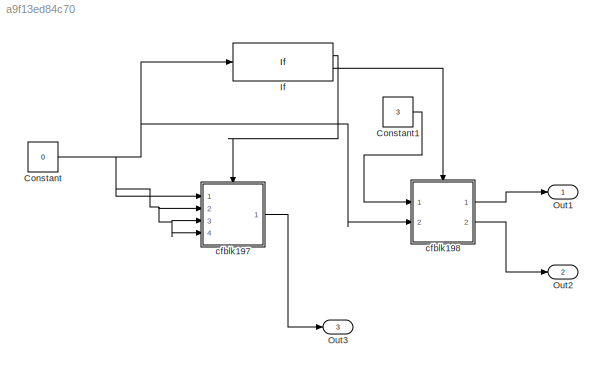
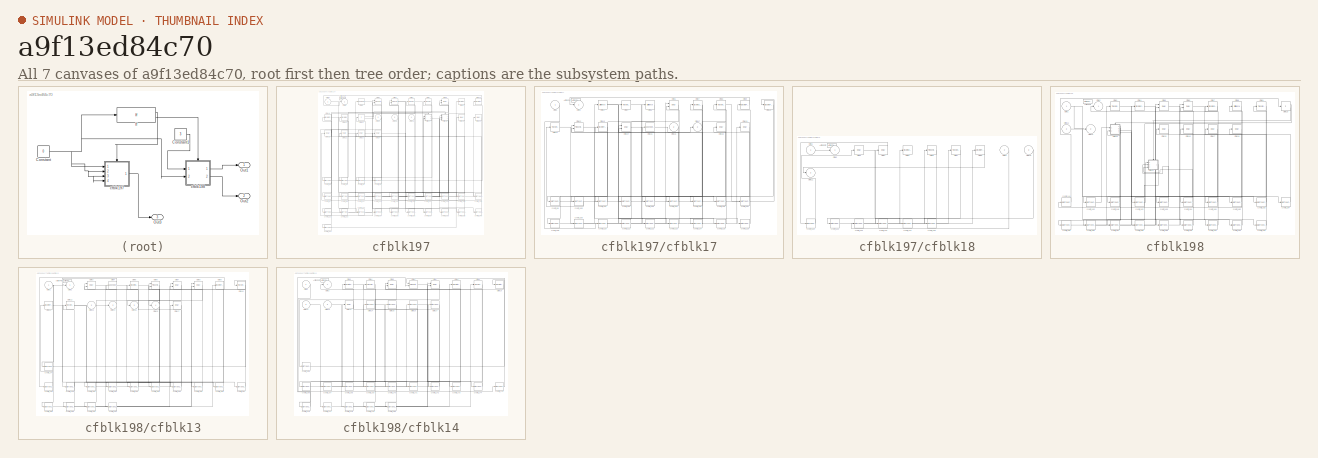
[diagram: thumbnail index - all 7 canvases of the model, root first then tree order]
MODEL slx_a9f13ed84c70
KIND model
CONFIG AbsTol = auto
CONFIG EnableMultiTasking = off
CONFIG FixedStep = auto
CONFIG MaxStep = auto
CONFIG MinStep = auto
CONFIG RelTol = 1e-3
CONFIG SampleTimeConstraint = Unconstrained
CONFIG Solver = VariableStepAuto
CONFIG SolverName = VariableStepAuto
CONFIG StartTime = 0.0
CONFIG StopTime = 10.0
BLOCK [Constant] Constant
  Value = 0
BLOCK [Constant] Constant1
  Value = 3
BLOCK [If] If
  Ports = [1, 2]
BLOCK [Outport] Out1
  IconDisplay = Port number
BLOCK [Outport] Out2
  IconDisplay = Port number
  Port = 2
BLOCK [Outport] Out3
  IconDisplay = Port number
  Port = 3
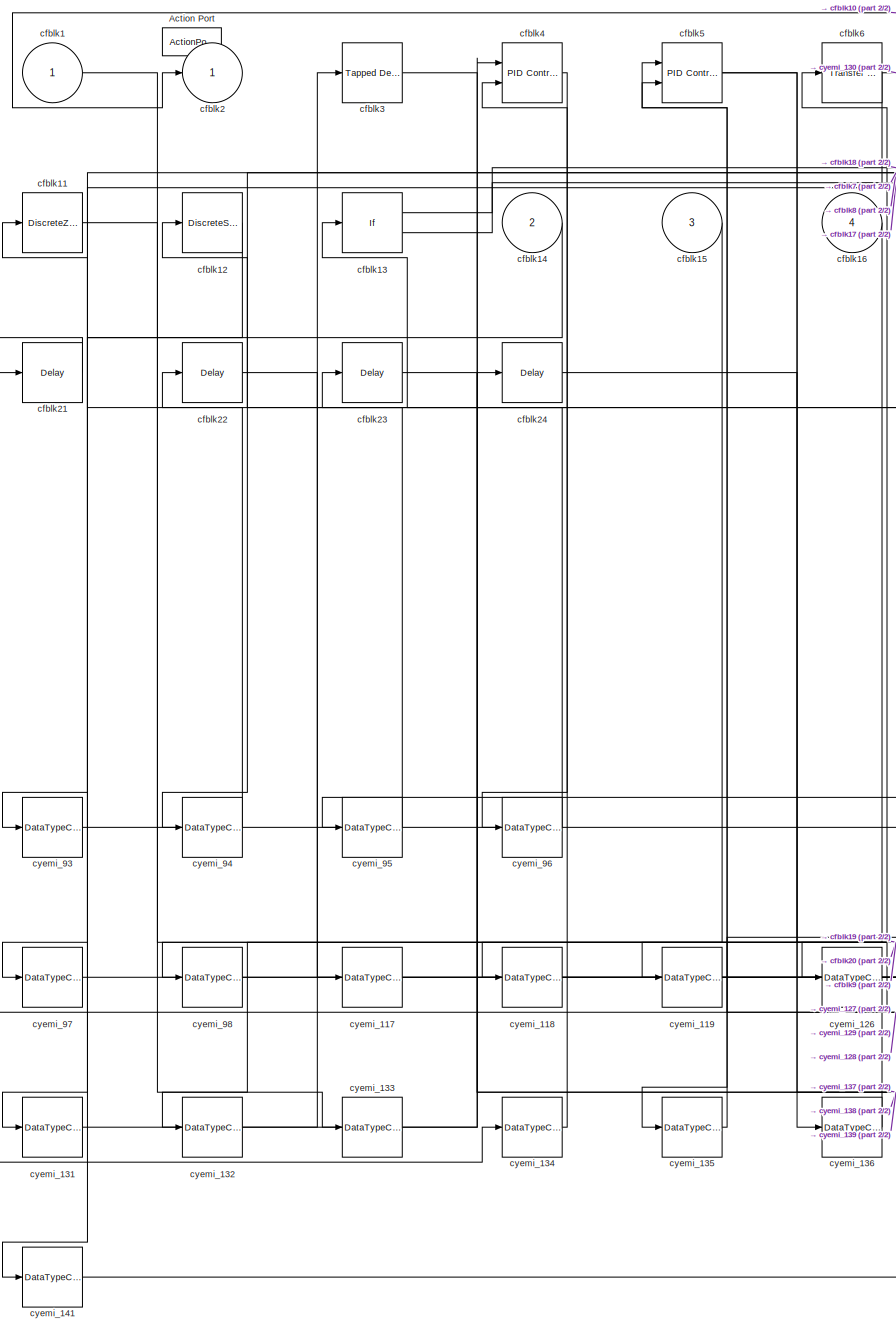
[diagram: cfblk197 - part 1/2, left side, full height]
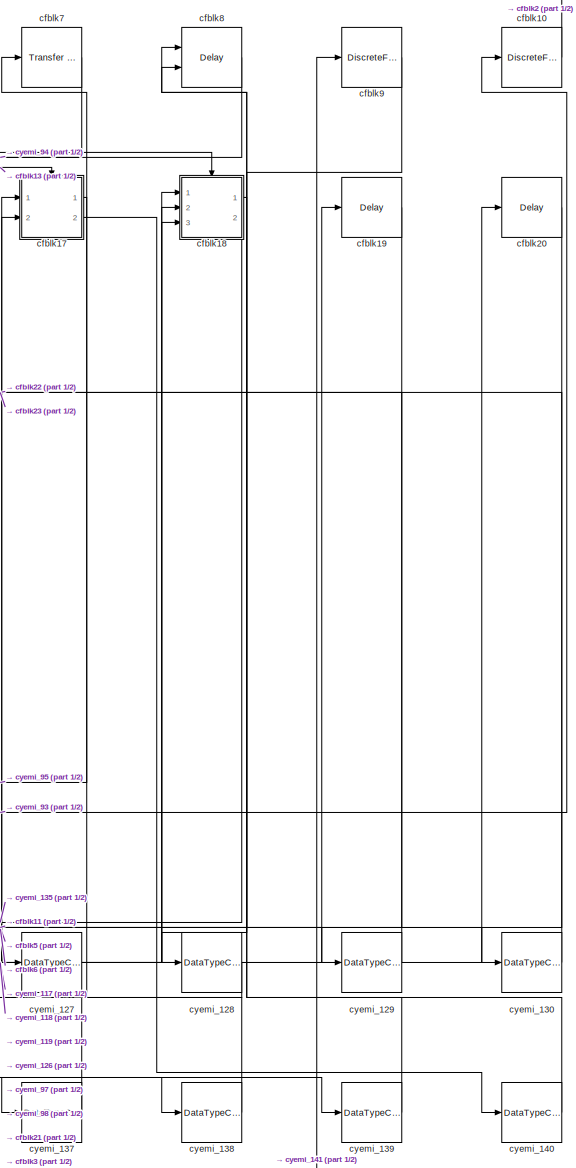
[diagram: cfblk197 - part 2/2, right side, full height]
BLOCK [SubSystem] cfblk197
  Ports = [4, 1, 0, 0, 0, 0, 0, 1]
  RequestExecContextInheritance = off
  TreatAsAtomicUnit = on
BLOCK [ActionPort] cfblk197/Action Port
  ActionType = then
BLOCK [Inport] cfblk197/cfblk1
  IconDisplay = Port number
BLOCK [DiscreteFilter] cfblk197/cfblk10
  InputPortMap = u0
  Ports = [1, 1]
BLOCK [DiscreteZeroPole] cfblk197/cfblk11
  Gain = 1
  Poles = [0 0.5]
  SampleTime = -1
BLOCK [DiscreteStateSpace] cfblk197/cfblk12
  SampleTime = -1
BLOCK [If] cfblk197/cfblk13
  Ports = [1, 2]
  SampleTime = 1
BLOCK [Inport] cfblk197/cfblk14
  IconDisplay = Port number
  Port = 2
BLOCK [Inport] cfblk197/cfblk15
  IconDisplay = Port number
  Port = 3
BLOCK [Inport] cfblk197/cfblk16
  IconDisplay = Port number
  Port = 4
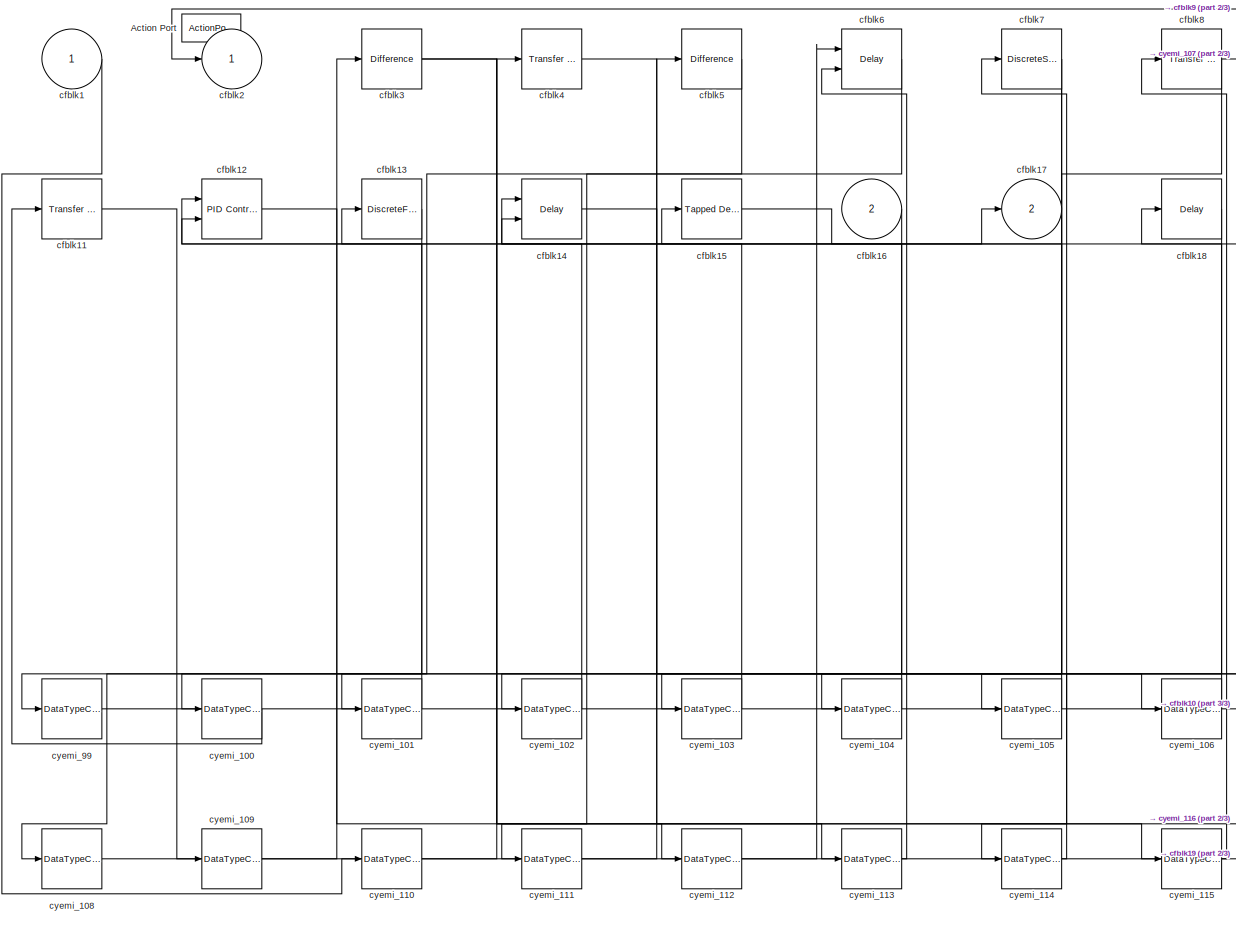
[diagram: cfblk197/cfblk17 - part 1/3, most of the canvas]
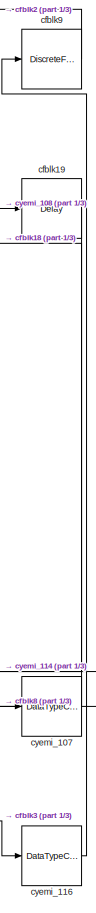
[diagram: cfblk197/cfblk17 - part 2/3, right side, full height]
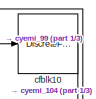
[diagram: cfblk197/cfblk17 - part 3/3, top right region]
BLOCK [SubSystem] cfblk197/cfblk17
  Ports = [2, 2, 0, 0, 0, 0, 0, 1]
  RequestExecContextInheritance = off
  TreatAsAtomicUnit = on
BLOCK [ActionPort] cfblk197/cfblk17/Action Port
  ActionType = then
BLOCK [Inport] cfblk197/cfblk17/cfblk1
  IconDisplay = Port number
BLOCK [DiscreteFir] cfblk197/cfblk17/cfblk10
  InputPortMap = u0
  OutputPortMap = o0
  Ports = [1, 1]
BLOCK [Reference] cfblk197/cfblk17/cfblk11  REF=simulink/Discrete/Transfer Fcn
Real Zero
  Ports = [1, 1]
  SourceBlock = simulink/Discrete/Transfer Fcn\nReal Zero
  SourceProductBaseCode = SL
  SourceProductName = Simulink
  SourceType = Transfer Fcn Real Zero
BLOCK [Reference] cfblk197/cfblk17/cfblk12  REF=simulink/Continuous/PID Controller (2DOF)
  Ports = [2, 1]
  SourceBlock = simulink/Continuous/PID Controller (2DOF)
  SourceProductBaseCode = SL
  SourceProductName = Simulink
  SourceType = PID 2dof
BLOCK [DiscreteFir] cfblk197/cfblk17/cfblk13
  InputPortMap = u0
  OutputPortMap = o0
  Ports = [1, 1]
BLOCK [Delay] cfblk197/cfblk17/cfblk14
  InputPortMap = u0,e6
  Ports = [2, 1]
  ShowEnablePort = on
BLOCK [Reference] cfblk197/cfblk17/cfblk15  REF=simulink/Discrete/Tapped Delay
  Ports = [1, 1]
  SourceBlock = simulink/Discrete/Tapped Delay
  SourceProductBaseCode = SL
  SourceProductName = Simulink
  SourceType = Tapped Delay Line
BLOCK [Inport] cfblk197/cfblk17/cfblk16
  IconDisplay = Port number
  Port = 2
BLOCK [Outport] cfblk197/cfblk17/cfblk17
  IconDisplay = Port number
  Port = 2
BLOCK [Delay] cfblk197/cfblk17/cfblk18
  InputPortMap = u0
  Ports = [1, 1]
BLOCK [Delay] cfblk197/cfblk17/cfblk19
  InputPortMap = u0
  Ports = [1, 1]
BLOCK [Outport] cfblk197/cfblk17/cfblk2
  IconDisplay = Port number
BLOCK [Reference] cfblk197/cfblk17/cfblk3  REF=simulink/Discrete/Difference
  Ports = [1, 1]
  SourceBlock = simulink/Discrete/Difference
  SourceProductBaseCode = SL
  SourceProductName = Simulink
  SourceType = Difference
BLOCK [Reference] cfblk197/cfblk17/cfblk4  REF=simulink/Discrete/Transfer Fcn
Real Zero
  Ports = [1, 1]
  SourceBlock = simulink/Discrete/Transfer Fcn\nReal Zero
  SourceProductBaseCode = SL
  SourceProductName = Simulink
  SourceType = Transfer Fcn Real Zero
BLOCK [Reference] cfblk197/cfblk17/cfblk5  REF=simulink/Discrete/Difference
  Ports = [1, 1]
  SourceBlock = simulink/Discrete/Difference
  SourceProductBaseCode = SL
  SourceProductName = Simulink
  SourceType = Difference
BLOCK [Delay] cfblk197/cfblk17/cfblk6
  DelayLengthSource = Input port
  InputPortMap = u0,p1
  Ports = [2, 1]
BLOCK [DiscreteStateSpace] cfblk197/cfblk17/cfblk7
  SampleTime = -1
BLOCK [Reference] cfblk197/cfblk17/cfblk8  REF=simulink/Discrete/Transfer Fcn
Lead or Lag
  Ports = [1, 1]
  SourceBlock = simulink/Discrete/Transfer Fcn\nLead or Lag
  SourceProductBaseCode = SL
  SourceProductName = Simulink
  SourceType = Lead or Lag Compensator
BLOCK [DiscreteFir] cfblk197/cfblk17/cfblk9
  InputPortMap = u0
  OutputPortMap = o0
  Ports = [1, 1]
BLOCK [DataTypeConversion] cfblk197/cfblk17/cyemi_100
  OutDataTypeStr = double
  RndMeth = Floor
  SaturateOnIntegerOverflow = off
BLOCK [DataTypeConversion] cfblk197/cfblk17/cyemi_101
  OutDataTypeStr = double
  RndMeth = Floor
  SaturateOnIntegerOverflow = off
BLOCK [DataTypeConversion] cfblk197/cfblk17/cyemi_102
  OutDataTypeStr = double
  RndMeth = Floor
  SaturateOnIntegerOverflow = off
BLOCK [DataTypeConversion] cfblk197/cfblk17/cyemi_103
  OutDataTypeStr = double
  RndMeth = Floor
  SaturateOnIntegerOverflow = off
BLOCK [DataTypeConversion] cfblk197/cfblk17/cyemi_104
  OutDataTypeStr = double
  RndMeth = Floor
  SaturateOnIntegerOverflow = off
BLOCK [DataTypeConversion] cfblk197/cfblk17/cyemi_105
  OutDataTypeStr = double
  RndMeth = Floor
  SaturateOnIntegerOverflow = off
BLOCK [DataTypeConversion] cfblk197/cfblk17/cyemi_106
  OutDataTypeStr = double
  RndMeth = Floor
  SaturateOnIntegerOverflow = off
BLOCK [DataTypeConversion] cfblk197/cfblk17/cyemi_107
  OutDataTypeStr = double
  RndMeth = Floor
  SaturateOnIntegerOverflow = off
BLOCK [DataTypeConversion] cfblk197/cfblk17/cyemi_108
  OutDataTypeStr = double
  RndMeth = Floor
  SaturateOnIntegerOverflow = off
BLOCK [DataTypeConversion] cfblk197/cfblk17/cyemi_109
  OutDataTypeStr = double
  RndMeth = Floor
  SaturateOnIntegerOverflow = off
BLOCK [DataTypeConversion] cfblk197/cfblk17/cyemi_110
  OutDataTypeStr = double
  RndMeth = Floor
  SaturateOnIntegerOverflow = off
BLOCK [DataTypeConversion] cfblk197/cfblk17/cyemi_111
  OutDataTypeStr = double
  RndMeth = Floor
  SaturateOnIntegerOverflow = off
BLOCK [DataTypeConversion] cfblk197/cfblk17/cyemi_112
  OutDataTypeStr = double
  RndMeth = Floor
  SaturateOnIntegerOverflow = off
BLOCK [DataTypeConversion] cfblk197/cfblk17/cyemi_113
  OutDataTypeStr = double
  RndMeth = Floor
  SaturateOnIntegerOverflow = off
BLOCK [DataTypeConversion] cfblk197/cfblk17/cyemi_114
  OutDataTypeStr = double
  RndMeth = Floor
  SaturateOnIntegerOverflow = off
BLOCK [DataTypeConversion] cfblk197/cfblk17/cyemi_115
  OutDataTypeStr = double
  RndMeth = Floor
  SaturateOnIntegerOverflow = off
BLOCK [DataTypeConversion] cfblk197/cfblk17/cyemi_116
  OutDataTypeStr = double
  RndMeth = Floor
  SaturateOnIntegerOverflow = off
BLOCK [DataTypeConversion] cfblk197/cfblk17/cyemi_99
  OutDataTypeStr = double
  RndMeth = Floor
  SaturateOnIntegerOverflow = off
BLOCK [SubSystem] cfblk197/cfblk18
  Ports = [3, 2, 0, 0, 0, 0, 0, 1]
  RequestExecContextInheritance = off
  TreatAsAtomicUnit = on
BLOCK [ActionPort] cfblk197/cfblk18/Action Port
  ActionType = else
BLOCK [Inport] cfblk197/cfblk18/cfblk1
  IconDisplay = Port number
BLOCK [Inport] cfblk197/cfblk18/cfblk10
  IconDisplay = Port number
  Port = 3
BLOCK [Outport] cfblk197/cfblk18/cfblk11
  IconDisplay = Port number
  Port = 2
BLOCK [Outport] cfblk197/cfblk18/cfblk2
  IconDisplay = Port number
BLOCK [Delay] cfblk197/cfblk18/cfblk3
  InputPortMap = u0
  Ports = [1, 1]
BLOCK [Delay] cfblk197/cfblk18/cfblk4
  InputPortMap = u0
  Ports = [1, 1]
BLOCK [DiscreteZeroPole] cfblk197/cfblk18/cfblk5
  Gain = 1
  Poles = [0 0.5]
  SampleTime = -1
BLOCK [Reference] cfblk197/cfblk18/cfblk6  REF=simulink/Continuous/PID Controller
  Ports = [1, 1]
  SourceBlock = simulink/Continuous/PID Controller
  SourceProductBaseCode = SL
  SourceProductName = Simulink
  SourceType = PID 1dof
BLOCK [Reference] cfblk197/cfblk18/cfblk7  REF=simulink/Discrete/Transfer Fcn
Real Zero
  Ports = [1, 1]
  SourceBlock = simulink/Discrete/Transfer Fcn\nReal Zero
  SourceProductBaseCode = SL
  SourceProductName = Simulink
  SourceType = Transfer Fcn Real Zero
BLOCK [DiscreteFilter] cfblk197/cfblk18/cfblk8
  InputPortMap = u0
  Ports = [1, 1]
BLOCK [Inport] cfblk197/cfblk18/cfblk9
  IconDisplay = Port number
  Port = 2
BLOCK [DataTypeConversion] cfblk197/cfblk18/cyemi_120
  OutDataTypeStr = double
  RndMeth = Floor
  SaturateOnIntegerOverflow = off
BLOCK [DataTypeConversion] cfblk197/cfblk18/cyemi_121
  OutDataTypeStr = double
  RndMeth = Floor
  SaturateOnIntegerOverflow = off
BLOCK [DataTypeConversion] cfblk197/cfblk18/cyemi_122
  OutDataTypeStr = double
  RndMeth = Floor
  SaturateOnIntegerOverflow = off
BLOCK [DataTypeConversion] cfblk197/cfblk18/cyemi_123
  OutDataTypeStr = double
  RndMeth = Floor
  SaturateOnIntegerOverflow = off
BLOCK [DataTypeConversion] cfblk197/cfblk18/cyemi_124
  OutDataTypeStr = double
  RndMeth = Floor
  SaturateOnIntegerOverflow = off
BLOCK [DataTypeConversion] cfblk197/cfblk18/cyemi_125
  OutDataTypeStr = double
  RndMeth = Floor
  SaturateOnIntegerOverflow = off
BLOCK [Delay] cfblk197/cfblk19
  InputPortMap = u0
  Ports = [1, 1]
BLOCK [Outport] cfblk197/cfblk2
  IconDisplay = Port number
BLOCK [Delay] cfblk197/cfblk20
  InputPortMap = u0
  Ports = [1, 1]
BLOCK [Delay] cfblk197/cfblk21
  InputPortMap = u0
  Ports = [1, 1]
BLOCK [Delay] cfblk197/cfblk22
  InputPortMap = u0
  Ports = [1, 1]
BLOCK [Delay] cfblk197/cfblk23
  InputPortMap = u0
  Ports = [1, 1]
BLOCK [Delay] cfblk197/cfblk24
  InputPortMap = u0
  Ports = [1, 1]
BLOCK [Reference] cfblk197/cfblk3  REF=simulink/Discrete/Tapped Delay
  Ports = [1, 1]
  SourceBlock = simulink/Discrete/Tapped Delay
  SourceProductBaseCode = SL
  SourceProductName = Simulink
  SourceType = Tapped Delay Line
BLOCK [Reference] cfblk197/cfblk4  REF=simulink/Continuous/PID Controller (2DOF)
  Ports = [2, 1]
  SourceBlock = simulink/Continuous/PID Controller (2DOF)
  SourceProductBaseCode = SL
  SourceProductName = Simulink
  SourceType = PID 2dof
BLOCK [Reference] cfblk197/cfblk5  REF=simulink/Continuous/PID Controller (2DOF)
  Ports = [2, 1]
  SourceBlock = simulink/Continuous/PID Controller (2DOF)
  SourceProductBaseCode = SL
  SourceProductName = Simulink
  SourceType = PID 2dof
BLOCK [Reference] cfblk197/cfblk6  REF=simulink/Discrete/Transfer Fcn
Real Zero
  Ports = [1, 1]
  SourceBlock = simulink/Discrete/Transfer Fcn\nReal Zero
  SourceProductBaseCode = SL
  SourceProductName = Simulink
  SourceType = Transfer Fcn Real Zero
BLOCK [Reference] cfblk197/cfblk7  REF=simulink/Discrete/Transfer Fcn
Lead or Lag
  Ports = [1, 1]
  SourceBlock = simulink/Discrete/Transfer Fcn\nLead or Lag
  SourceProductBaseCode = SL
  SourceProductName = Simulink
  SourceType = Lead or Lag Compensator
BLOCK [Delay] cfblk197/cfblk8
  DelayLengthSource = Input port
  InputPortMap = u0,p1
  Ports = [2, 1]
BLOCK [DiscreteFir] cfblk197/cfblk9
  InputPortMap = u0
  OutputPortMap = o0
  Ports = [1, 1]
BLOCK [DataTypeConversion] cfblk197/cyemi_117
  OutDataTypeStr = double
  RndMeth = Floor
  SaturateOnIntegerOverflow = off
BLOCK [DataTypeConversion] cfblk197/cyemi_118
  OutDataTypeStr = double
  RndMeth = Floor
  SaturateOnIntegerOverflow = off
BLOCK [DataTypeConversion] cfblk197/cyemi_119
  OutDataTypeStr = double
  RndMeth = Floor
  SaturateOnIntegerOverflow = off
BLOCK [DataTypeConversion] cfblk197/cyemi_126
  OutDataTypeStr = double
  RndMeth = Floor
  SaturateOnIntegerOverflow = off
BLOCK [DataTypeConversion] cfblk197/cyemi_127
  OutDataTypeStr = double
  RndMeth = Floor
  SaturateOnIntegerOverflow = off
BLOCK [DataTypeConversion] cfblk197/cyemi_128
  OutDataTypeStr = double
  RndMeth = Floor
  SaturateOnIntegerOverflow = off
BLOCK [DataTypeConversion] cfblk197/cyemi_129
  OutDataTypeStr = double
  RndMeth = Floor
  SaturateOnIntegerOverflow = off
BLOCK [DataTypeConversion] cfblk197/cyemi_130
  OutDataTypeStr = double
  RndMeth = Floor
  SaturateOnIntegerOverflow = off
BLOCK [DataTypeConversion] cfblk197/cyemi_131
  OutDataTypeStr = double
  RndMeth = Floor
  SaturateOnIntegerOverflow = off
BLOCK [DataTypeConversion] cfblk197/cyemi_132
  OutDataTypeStr = double
  RndMeth = Floor
  SaturateOnIntegerOverflow = off
BLOCK [DataTypeConversion] cfblk197/cyemi_133
  OutDataTypeStr = double
  RndMeth = Floor
  SaturateOnIntegerOverflow = off
BLOCK [DataTypeConversion] cfblk197/cyemi_134
  OutDataTypeStr = double
  RndMeth = Floor
  SaturateOnIntegerOverflow = off
BLOCK [DataTypeConversion] cfblk197/cyemi_135
  OutDataTypeStr = double
  RndMeth = Floor
  SaturateOnIntegerOverflow = off
BLOCK [DataTypeConversion] cfblk197/cyemi_136
  OutDataTypeStr = double
  RndMeth = Floor
  SaturateOnIntegerOverflow = off
BLOCK [DataTypeConversion] cfblk197/cyemi_137
  OutDataTypeStr = double
  RndMeth = Floor
  SaturateOnIntegerOverflow = off
BLOCK [DataTypeConversion] cfblk197/cyemi_138
  OutDataTypeStr = double
  RndMeth = Floor
  SaturateOnIntegerOverflow = off
BLOCK [DataTypeConversion] cfblk197/cyemi_139
  OutDataTypeStr = double
  RndMeth = Floor
  SaturateOnIntegerOverflow = off
BLOCK [DataTypeConversion] cfblk197/cyemi_140
  OutDataTypeStr = double
  RndMeth = Floor
  SaturateOnIntegerOverflow = off
BLOCK [DataTypeConversion] cfblk197/cyemi_141
  OutDataTypeStr = double
  RndMeth = Floor
  SaturateOnIntegerOverflow = off
BLOCK [DataTypeConversion] cfblk197/cyemi_93
  OutDataTypeStr = double
  RndMeth = Floor
  SaturateOnIntegerOverflow = off
BLOCK [DataTypeConversion] cfblk197/cyemi_94
  OutDataTypeStr = double
  RndMeth = Floor
  SaturateOnIntegerOverflow = off
BLOCK [DataTypeConversion] cfblk197/cyemi_95
  OutDataTypeStr = double
  RndMeth = Floor
  SaturateOnIntegerOverflow = off
BLOCK [DataTypeConversion] cfblk197/cyemi_96
  OutDataTypeStr = double
  RndMeth = Floor
  SaturateOnIntegerOverflow = off
BLOCK [DataTypeConversion] cfblk197/cyemi_97
  OutDataTypeStr = double
  RndMeth = Floor
  SaturateOnIntegerOverflow = off
BLOCK [DataTypeConversion] cfblk197/cyemi_98
  OutDataTypeStr = double
  RndMeth = Floor
  SaturateOnIntegerOverflow = off
BLOCK [SubSystem] cfblk198
  Ports = [2, 2, 0, 0, 0, 0, 0, 1]
  RequestExecContextInheritance = off
  TreatAsAtomicUnit = on
BLOCK [ActionPort] cfblk198/Action Port
  ActionType = else
BLOCK [Inport] cfblk198/cfblk1
  IconDisplay = Port number
BLOCK [If] cfblk198/cfblk10
  Ports = [1, 2]
  SampleTime = 1
BLOCK [Inport] cfblk198/cfblk11
  IconDisplay = Port number
  Port = 2
BLOCK [Outport] cfblk198/cfblk12
  IconDisplay = Port number
  Port = 2
BLOCK [SubSystem] cfblk198/cfblk13
  Ports = [2, 4, 0, 0, 0, 0, 0, 1]
  RequestExecContextInheritance = off
  TreatAsAtomicUnit = on
BLOCK [ActionPort] cfblk198/cfblk13/Action Port
  ActionType = then
BLOCK [Inport] cfblk198/cfblk13/cfblk1
  IconDisplay = Port number
BLOCK [Reference] cfblk198/cfblk13/cfblk10  REF=simulink/Discrete/Transfer Fcn
Real Zero
  Ports = [1, 1]
  SourceBlock = simulink/Discrete/Transfer Fcn\nReal Zero
  SourceProductBaseCode = SL
  SourceProductName = Simulink
  SourceType = Transfer Fcn Real Zero
BLOCK [DiscreteFilter] cfblk198/cfblk13/cfblk11
  InputPortMap = u0
  Ports = [1, 1]
BLOCK [Reference] cfblk198/cfblk13/cfblk12  REF=simulink/Discrete/Transfer Fcn
Lead or Lag
  Ports = [1, 1]
  SourceBlock = simulink/Discrete/Transfer Fcn\nLead or Lag
  SourceProductBaseCode = SL
  SourceProductName = Simulink
  SourceType = Lead or Lag Compensator
BLOCK [Inport] cfblk198/cfblk13/cfblk13
  IconDisplay = Port number
  Port = 2
BLOCK [Outport] cfblk198/cfblk13/cfblk14
  IconDisplay = Port number
  Port = 2
BLOCK [Outport] cfblk198/cfblk13/cfblk15
  IconDisplay = Port number
  Port = 3
BLOCK [Outport] cfblk198/cfblk13/cfblk16
  IconDisplay = Port number
  Port = 4
BLOCK [Delay] cfblk198/cfblk13/cfblk17
  InputPortMap = u0
  Ports = [1, 1]
BLOCK [Outport] cfblk198/cfblk13/cfblk2
  IconDisplay = Port number
BLOCK [Delay] cfblk198/cfblk13/cfblk3
  DelayLengthSource = Input port
  InputPortMap = u0,p1
  Ports = [2, 1]
BLOCK [Reference] cfblk198/cfblk13/cfblk4  REF=simulink/Discrete/Tapped Delay
  Ports = [1, 1]
  SourceBlock = simulink/Discrete/Tapped Delay
  SourceProductBaseCode = SL
  SourceProductName = Simulink
  SourceType = Tapped Delay Line
BLOCK [DiscreteIntegrator] cfblk198/cfblk13/cfblk5
  ICPrevOutput = DiscIntNeverNeededParam
  ICPrevScaledInput = DiscIntNeverNeededParam
  InitialConditionSetting = Auto
  Ports = [1, 1]
  SampleTime = -1
BLOCK [Reference] cfblk198/cfblk13/cfblk6  REF=simulink/Continuous/PID Controller (2DOF)
  Ports = [2, 1]
  SourceBlock = simulink/Continuous/PID Controller (2DOF)
  SourceProductBaseCode = SL
  SourceProductName = Simulink
  SourceType = PID 2dof
BLOCK [Delay] cfblk198/cfblk13/cfblk7
  DelayLengthSource = Input port
  InputPortMap = u0,p1
  Ports = [2, 1]
BLOCK [Delay] cfblk198/cfblk13/cfblk8
  DelayLengthSource = Input port
  InputPortMap = u0,p1
  Ports = [2, 1]
BLOCK [DiscreteFir] cfblk198/cfblk13/cfblk9
  InputPortMap = u0
  OutputPortMap = o0
  Ports = [1, 1]
BLOCK [DataTypeConversion] cfblk198/cfblk13/cyemi_147
  OutDataTypeStr = double
  RndMeth = Floor
  SaturateOnIntegerOverflow = off
BLOCK [DataTypeConversion] cfblk198/cfblk13/cyemi_148
  OutDataTypeStr = double
  RndMeth = Floor
  SaturateOnIntegerOverflow = off
BLOCK [DataTypeConversion] cfblk198/cfblk13/cyemi_149
  OutDataTypeStr = double
  RndMeth = Floor
  SaturateOnIntegerOverflow = off
BLOCK [DataTypeConversion] cfblk198/cfblk13/cyemi_150
  OutDataTypeStr = double
  RndMeth = Floor
  SaturateOnIntegerOverflow = off
BLOCK [DataTypeConversion] cfblk198/cfblk13/cyemi_151
  OutDataTypeStr = double
  RndMeth = Floor
  SaturateOnIntegerOverflow = off
BLOCK [DataTypeConversion] cfblk198/cfblk13/cyemi_152
  OutDataTypeStr = double
  RndMeth = Floor
  SaturateOnIntegerOverflow = off
BLOCK [DataTypeConversion] cfblk198/cfblk13/cyemi_153
  OutDataTypeStr = double
  RndMeth = Floor
  SaturateOnIntegerOverflow = off
BLOCK [DataTypeConversion] cfblk198/cfblk13/cyemi_154
  OutDataTypeStr = double
  RndMeth = Floor
  SaturateOnIntegerOverflow = off
BLOCK [DataTypeConversion] cfblk198/cfblk13/cyemi_155
  OutDataTypeStr = double
  RndMeth = Floor
  SaturateOnIntegerOverflow = off
BLOCK [DataTypeConversion] cfblk198/cfblk13/cyemi_156
  OutDataTypeStr = double
  RndMeth = Floor
  SaturateOnIntegerOverflow = off
BLOCK [DataTypeConversion] cfblk198/cfblk13/cyemi_157
  OutDataTypeStr = double
  RndMeth = Floor
  SaturateOnIntegerOverflow = off
BLOCK [DataTypeConversion] cfblk198/cfblk13/cyemi_158
  OutDataTypeStr = double
  RndMeth = Floor
  SaturateOnIntegerOverflow = off
BLOCK [DataTypeConversion] cfblk198/cfblk13/cyemi_159
  OutDataTypeStr = double
  RndMeth = Floor
  SaturateOnIntegerOverflow = off
BLOCK [DataTypeConversion] cfblk198/cfblk13/cyemi_160
  OutDataTypeStr = double
  RndMeth = Floor
  SaturateOnIntegerOverflow = off
BLOCK [DataTypeConversion] cfblk198/cfblk13/cyemi_161
  OutDataTypeStr = double
  RndMeth = Floor
  SaturateOnIntegerOverflow = off
BLOCK [SubSystem] cfblk198/cfblk14
  Ports = [3, 1, 0, 0, 0, 0, 0, 1]
  RequestExecContextInheritance = off
  TreatAsAtomicUnit = on
BLOCK [ActionPort] cfblk198/cfblk14/Action Port
  ActionType = else
BLOCK [Inport] cfblk198/cfblk14/cfblk1
  IconDisplay = Port number
BLOCK [DiscreteIntegrator] cfblk198/cfblk14/cfblk10
  ICPrevOutput = DiscIntNeverNeededParam
  ICPrevScaledInput = DiscIntNeverNeededParam
  InitialConditionSetting = Auto
  Ports = [1, 1]
  SampleTime = -1
BLOCK [Inport] cfblk198/cfblk14/cfblk11
  IconDisplay = Port number
  Port = 2
BLOCK [Inport] cfblk198/cfblk14/cfblk12
  IconDisplay = Port number
  Port = 3
BLOCK [Delay] cfblk198/cfblk14/cfblk13
  InputPortMap = u0
  Ports = [1, 1]
BLOCK [DataTypeConversion] cfblk198/cfblk14/cfblk14
  RndMeth = Floor
  SaturateOnIntegerOverflow = off
BLOCK [DataTypeConversion] cfblk198/cfblk14/cfblk15
  RndMeth = Floor
  SaturateOnIntegerOverflow = off
BLOCK [DataTypeConversion] cfblk198/cfblk14/cfblk16
  RndMeth = Floor
  SaturateOnIntegerOverflow = off
BLOCK [DataTypeConversion] cfblk198/cfblk14/cfblk17
  RndMeth = Floor
  SaturateOnIntegerOverflow = off
BLOCK [Outport] cfblk198/cfblk14/cfblk2
  IconDisplay = Port number
BLOCK [DiscreteStateSpace] cfblk198/cfblk14/cfblk3
  SampleTime = -1
BLOCK [Reference] cfblk198/cfblk14/cfblk4  REF=simulink/Discrete/Transfer Fcn
Real Zero
  Ports = [1, 1]
  SourceBlock = simulink/Discrete/Transfer Fcn\nReal Zero
  SourceProductBaseCode = SL
  SourceProductName = Simulink
  SourceType = Transfer Fcn Real Zero
BLOCK [Delay] cfblk198/cfblk14/cfblk5
  DelayLengthSource = Input port
  InputPortMap = u0,p1
  Ports = [2, 1]
BLOCK [Reference] cfblk198/cfblk14/cfblk6  REF=simulink/Continuous/PID Controller (2DOF)
  Ports = [2, 1]
  SourceBlock = simulink/Continuous/PID Controller (2DOF)
  SourceProductBaseCode = SL
  SourceProductName = Simulink
  SourceType = PID 2dof
BLOCK [Delay] cfblk198/cfblk14/cfblk7
  DelayLengthSource = Input port
  InputPortMap = u0,p1
  Ports = [2, 1]
BLOCK [DiscreteIntegrator] cfblk198/cfblk14/cfblk8
  ICPrevOutput = DiscIntNeverNeededParam
  ICPrevScaledInput = DiscIntNeverNeededParam
  InitialConditionSetting = Auto
  Ports = [1, 1]
  SampleTime = -1
BLOCK [Reference] cfblk198/cfblk14/cfblk9  REF=simulink/Discrete/Transfer Fcn
Lead or Lag
  Ports = [1, 1]
  SourceBlock = simulink/Discrete/Transfer Fcn\nLead or Lag
  SourceProductBaseCode = SL
  SourceProductName = Simulink
  SourceType = Lead or Lag Compensator
BLOCK [DataTypeConversion] cfblk198/cfblk14/cyemi_165
  OutDataTypeStr = double
  RndMeth = Floor
  SaturateOnIntegerOverflow = off
BLOCK [DataTypeConversion] cfblk198/cfblk14/cyemi_166
  OutDataTypeStr = double
  RndMeth = Floor
  SaturateOnIntegerOverflow = off
BLOCK [DataTypeConversion] cfblk198/cfblk14/cyemi_167
  OutDataTypeStr = double
  RndMeth = Floor
  SaturateOnIntegerOverflow = off
BLOCK [DataTypeConversion] cfblk198/cfblk14/cyemi_168
  OutDataTypeStr = fixdt('ufix32_E3')
  RndMeth = Floor
  SaturateOnIntegerOverflow = off
BLOCK [DataTypeConversion] cfblk198/cfblk14/cyemi_169
  OutDataTypeStr = double
  RndMeth = Floor
  SaturateOnIntegerOverflow = off
BLOCK [DataTypeConversion] cfblk198/cfblk14/cyemi_170
  OutDataTypeStr = double
  RndMeth = Floor
  SaturateOnIntegerOverflow = off
BLOCK [DataTypeConversion] cfblk198/cfblk14/cyemi_171
  OutDataTypeStr = double
  RndMeth = Floor
  SaturateOnIntegerOverflow = off
BLOCK [DataTypeConversion] cfblk198/cfblk14/cyemi_172
  OutDataTypeStr = double
  RndMeth = Floor
  SaturateOnIntegerOverflow = off
BLOCK [DataTypeConversion] cfblk198/cfblk14/cyemi_173
  OutDataTypeStr = double
  RndMeth = Floor
  SaturateOnIntegerOverflow = off
BLOCK [DataTypeConversion] cfblk198/cfblk14/cyemi_174
  OutDataTypeStr = uint32
  RndMeth = Floor
  SaturateOnIntegerOverflow = off
BLOCK [DataTypeConversion] cfblk198/cfblk14/cyemi_175
  OutDataTypeStr = double
  RndMeth = Floor
  SaturateOnIntegerOverflow = off
BLOCK [DataTypeConversion] cfblk198/cfblk14/cyemi_176
  OutDataTypeStr = double
  RndMeth = Floor
  SaturateOnIntegerOverflow = off
BLOCK [DataTypeConversion] cfblk198/cfblk14/cyemi_177
  OutDataTypeStr = double
  RndMeth = Floor
  SaturateOnIntegerOverflow = off
BLOCK [DataTypeConversion] cfblk198/cfblk14/cyemi_178
  OutDataTypeStr = double
  RndMeth = Floor
  SaturateOnIntegerOverflow = off
BLOCK [DataTypeConversion] cfblk198/cfblk14/cyemi_179
  OutDataTypeStr = double
  RndMeth = Floor
  SaturateOnIntegerOverflow = off
BLOCK [DataTypeConversion] cfblk198/cfblk14/cyemi_180
  OutDataTypeStr = uint32
  RndMeth = Floor
  SaturateOnIntegerOverflow = off
BLOCK [Delay] cfblk198/cfblk15
  InputPortMap = u0
  Ports = [1, 1]
BLOCK [Delay] cfblk198/cfblk16
  InputPortMap = u0
  Ports = [1, 1]
BLOCK [Delay] cfblk198/cfblk17
  InputPortMap = u0
  Ports = [1, 1]
BLOCK [Delay] cfblk198/cfblk18
  InputPortMap = u0
  Ports = [1, 1]
BLOCK [Outport] cfblk198/cfblk2
  IconDisplay = Port number
BLOCK [Reference] cfblk198/cfblk3  REF=simulink/Discrete/Transfer Fcn
Real Zero
  Ports = [1, 1]
  SourceBlock = simulink/Discrete/Transfer Fcn\nReal Zero
  SourceProductBaseCode = SL
  SourceProductName = Simulink
  SourceType = Transfer Fcn Real Zero
BLOCK [DiscreteZeroPole] cfblk198/cfblk4
  Gain = 1
  Poles = [0 0.5]
  SampleTime = -1
BLOCK [Delay] cfblk198/cfblk5
  DelayLengthSource = Input port
  InputPortMap = u0,p1
  Ports = [2, 1]
BLOCK [Delay] cfblk198/cfblk6
  DelayLengthSource = Input port
  InputPortMap = u0,p1
  Ports = [2, 1]
BLOCK [DiscreteStateSpace] cfblk198/cfblk7
  SampleTime = -1
BLOCK [Reference] cfblk198/cfblk8  REF=simulink/Discrete/Difference
  Ports = [1, 1]
  SourceBlock = simulink/Discrete/Difference
  SourceProductBaseCode = SL
  SourceProductName = Simulink
  SourceType = Difference
BLOCK [Reference] cfblk198/cfblk9  REF=simulink/Discrete/Transfer Fcn
Lead or Lag
  Ports = [1, 1]
  SourceBlock = simulink/Discrete/Transfer Fcn\nLead or Lag
  SourceProductBaseCode = SL
  SourceProductName = Simulink
  SourceType = Lead or Lag Compensator
BLOCK [DataTypeConversion] cfblk198/cyemi_144
  OutDataTypeStr = double
  RndMeth = Floor
  SaturateOnIntegerOverflow = off
BLOCK [DataTypeConversion] cfblk198/cyemi_145
  OutDataTypeStr = double
  RndMeth = Floor
  SaturateOnIntegerOverflow = off
BLOCK [DataTypeConversion] cfblk198/cyemi_146
  OutDataTypeStr = double
  RndMeth = Floor
  SaturateOnIntegerOverflow = off
BLOCK [DataTypeConversion] cfblk198/cyemi_162
  OutDataTypeStr = double
  RndMeth = Floor
  SaturateOnIntegerOverflow = off
BLOCK [DataTypeConversion] cfblk198/cyemi_163
  OutDataTypeStr = double
  RndMeth = Floor
  SaturateOnIntegerOverflow = off
BLOCK [DataTypeConversion] cfblk198/cyemi_164
  OutDataTypeStr = double
  RndMeth = Floor
  SaturateOnIntegerOverflow = off
BLOCK [DataTypeConversion] cfblk198/cyemi_181
  OutDataTypeStr = double
  RndMeth = Floor
  SaturateOnIntegerOverflow = off
BLOCK [DataTypeConversion] cfblk198/cyemi_182
  OutDataTypeStr = double
  RndMeth = Floor
  SaturateOnIntegerOverflow = off
BLOCK [DataTypeConversion] cfblk198/cyemi_183
  OutDataTypeStr = double
  RndMeth = Floor
  SaturateOnIntegerOverflow = off
BLOCK [DataTypeConversion] cfblk198/cyemi_184
  OutDataTypeStr = double
  RndMeth = Floor
  SaturateOnIntegerOverflow = off
BLOCK [DataTypeConversion] cfblk198/cyemi_185
  OutDataTypeStr = double
  RndMeth = Floor
  SaturateOnIntegerOverflow = off
BLOCK [DataTypeConversion] cfblk198/cyemi_186
  OutDataTypeStr = double
  RndMeth = Floor
  SaturateOnIntegerOverflow = off
BLOCK [DataTypeConversion] cfblk198/cyemi_187
  OutDataTypeStr = double
  RndMeth = Floor
  SaturateOnIntegerOverflow = off
BLOCK [DataTypeConversion] cfblk198/cyemi_188
  OutDataTypeStr = double
  RndMeth = Floor
  SaturateOnIntegerOverflow = off
BLOCK [DataTypeConversion] cfblk198/cyemi_189
  OutDataTypeStr = double
  RndMeth = Floor
  SaturateOnIntegerOverflow = off
BLOCK [DataTypeConversion] cfblk198/cyemi_190
  OutDataTypeStr = double
  RndMeth = Floor
  SaturateOnIntegerOverflow = off
BLOCK [DataTypeConversion] cfblk198/cyemi_191
  OutDataTypeStr = double
  RndMeth = Floor
  SaturateOnIntegerOverflow = off
BLOCK [DataTypeConversion] cfblk198/cyemi_192
  OutDataTypeStr = double
  RndMeth = Floor
  SaturateOnIntegerOverflow = off
BLOCK [DataTypeConversion] cfblk198/cyemi_193
  OutDataTypeStr = double
  RndMeth = Floor
  SaturateOnIntegerOverflow = off
LINE Constant1:1 -> cfblk198:1
NET Constant:1 -> If:1, cfblk197:1, cfblk197:2, cfblk197:3, cfblk197:4, cfblk198:2
LINE If:1 -> cfblk197:ifaction
LINE If:2 -> cfblk198:ifaction
LINE cfblk197/cfblk10:1 -> cfblk197/cfblk2:1
LINE cfblk197/cfblk11:1 -> cfblk197/cyemi_127:1
LINE cfblk197/cfblk12:1 -> cfblk197/cyemi_141:1
LINE cfblk197/cfblk13:1 -> cfblk197/cfblk17:ifaction
LINE cfblk197/cfblk13:2 -> cfblk197/cfblk18:ifaction
LINE cfblk197/cfblk14:1 -> cfblk197/cyemi_93:1
LINE cfblk197/cfblk15:1 -> cfblk197/cyemi_119:1
LINE cfblk197/cfblk16:1 -> cfblk197/cyemi_132:1
LINE cfblk197/cfblk17/cfblk10:1 -> cfblk197/cfblk17/cyemi_104:1
LINE cfblk197/cfblk17/cfblk11:1 -> cfblk197/cfblk17/cyemi_109:1
LINE cfblk197/cfblk17/cfblk12:1 -> cfblk197/cfblk17/cyemi_115:1
LINE cfblk197/cfblk17/cfblk13:1 -> cfblk197/cfblk17/cyemi_108:1
LINE cfblk197/cfblk17/cfblk14:1 -> cfblk197/cfblk17/cyemi_106:1
LINE cfblk197/cfblk17/cfblk15:1 -> cfblk197/cfblk17/cfblk17:1
LINE cfblk197/cfblk17/cfblk16:1 -> cfblk197/cfblk17/cyemi_99:1
LINE cfblk197/cfblk17/cfblk18:1 -> cfblk197/cfblk17/cyemi_102:1
LINE cfblk197/cfblk17/cfblk19:1 -> cfblk197/cfblk17/cyemi_114:1
LINE cfblk197/cfblk17/cfblk1:1 -> cfblk197/cfblk17/cyemi_110:1
NET cfblk197/cfblk17/cfblk3:1 -> cfblk197/cfblk17/cyemi_112:1, cfblk197/cfblk17/cyemi_116:1
LINE cfblk197/cfblk17/cfblk4:1 -> cfblk197/cfblk17/cyemi_113:1
LINE cfblk197/cfblk17/cfblk5:1 -> cfblk197/cfblk17/cyemi_101:1
LINE cfblk197/cfblk17/cfblk6:1 -> cfblk197/cfblk17/cyemi_111:1
NET cfblk197/cfblk17/cfblk7:1 -> cfblk197/cfblk17/cyemi_100:1, cfblk197/cfblk17/cyemi_103:1
NET cfblk197/cfblk17/cfblk8:1 -> cfblk197/cfblk17/cyemi_105:1, cfblk197/cfblk17/cyemi_107:1
LINE cfblk197/cfblk17/cfblk9:1 -> cfblk197/cfblk17/cfblk2:1
LINE cfblk197/cfblk17/cyemi_100:1 -> cfblk197/cfblk17/cfblk11:1
LINE cfblk197/cfblk17/cyemi_101:1 -> cfblk197/cfblk17/cfblk12:1
LINE cfblk197/cfblk17/cyemi_102:1 -> cfblk197/cfblk17/cfblk12:2
LINE cfblk197/cfblk17/cyemi_103:1 -> cfblk197/cfblk17/cfblk13:1
LINE cfblk197/cfblk17/cyemi_104:1 -> cfblk197/cfblk17/cfblk14:1
LINE cfblk197/cfblk17/cyemi_105:1 -> cfblk197/cfblk17/cfblk14:2
LINE cfblk197/cfblk17/cyemi_106:1 -> cfblk197/cfblk17/cfblk15:1
LINE cfblk197/cfblk17/cyemi_107:1 -> cfblk197/cfblk17/cfblk18:1
LINE cfblk197/cfblk17/cyemi_108:1 -> cfblk197/cfblk17/cfblk19:1
LINE cfblk197/cfblk17/cyemi_109:1 -> cfblk197/cfblk17/cfblk3:1
LINE cfblk197/cfblk17/cyemi_110:1 -> cfblk197/cfblk17/cfblk4:1
LINE cfblk197/cfblk17/cyemi_111:1 -> cfblk197/cfblk17/cfblk5:1
LINE cfblk197/cfblk17/cyemi_112:1 -> cfblk197/cfblk17/cfblk6:1
LINE cfblk197/cfblk17/cyemi_113:1 -> cfblk197/cfblk17/cfblk6:2
LINE cfblk197/cfblk17/cyemi_114:1 -> cfblk197/cfblk17/cfblk7:1
LINE cfblk197/cfblk17/cyemi_115:1 -> cfblk197/cfblk17/cfblk8:1
LINE cfblk197/cfblk17/cyemi_116:1 -> cfblk197/cfblk17/cfblk9:1
LINE cfblk197/cfblk17/cyemi_99:1 -> cfblk197/cfblk17/cfblk10:1
LINE cfblk197/cfblk17:1 -> cfblk197/cyemi_95:1
LINE cfblk197/cfblk17:2 -> cfblk197/cyemi_140:1
LINE cfblk197/cfblk18/cfblk10:1 -> cfblk197/cfblk18/cyemi_123:1
LINE cfblk197/cfblk18/cfblk1:1 -> cfblk197/cfblk18/cfblk2:1
LINE cfblk197/cfblk18/cfblk3:1 -> cfblk197/cfblk18/cyemi_124:1
LINE cfblk197/cfblk18/cfblk4:1 -> cfblk197/cfblk18/cyemi_120:1
LINE cfblk197/cfblk18/cfblk6:1 -> cfblk197/cfblk18/cyemi_121:1
LINE cfblk197/cfblk18/cfblk7:1 -> cfblk197/cfblk18/cyemi_125:1
LINE cfblk197/cfblk18/cfblk8:1 -> cfblk197/cfblk18/cfblk11:1
LINE cfblk197/cfblk18/cfblk9:1 -> cfblk197/cfblk18/cyemi_122:1
LINE cfblk197/cfblk18/cyemi_120:1 -> cfblk197/cfblk18/cfblk3:1
LINE cfblk197/cfblk18/cyemi_121:1 -> cfblk197/cfblk18/cfblk4:1
LINE cfblk197/cfblk18/cyemi_122:1 -> cfblk197/cfblk18/cfblk5:1
LINE cfblk197/cfblk18/cyemi_123:1 -> cfblk197/cfblk18/cfblk6:1
LINE cfblk197/cfblk18/cyemi_124:1 -> cfblk197/cfblk18/cfblk7:1
LINE cfblk197/cfblk18/cyemi_125:1 -> cfblk197/cfblk18/cfblk8:1
LINE cfblk197/cfblk18:1 -> cfblk197/cyemi_128:1
LINE cfblk197/cfblk18:2 -> cfblk197/cyemi_135:1
LINE cfblk197/cfblk19:1 -> cfblk197/cyemi_98:1
LINE cfblk197/cfblk1:1 -> cfblk197/cyemi_133:1
LINE cfblk197/cfblk20:1 -> cfblk197/cyemi_118:1
LINE cfblk197/cfblk21:1 -> cfblk197/cyemi_134:1
LINE cfblk197/cfblk22:1 -> cfblk197/cyemi_117:1
LINE cfblk197/cfblk23:1 -> cfblk197/cyemi_139:1
LINE cfblk197/cfblk24:1 -> cfblk197/cyemi_136:1
LINE cfblk197/cfblk3:1 -> cfblk197/cyemi_138:1
LINE cfblk197/cfblk4:1 -> cfblk197/cyemi_96:1
NET cfblk197/cfblk5:1 -> cfblk197/cyemi_129:1, cfblk197/cyemi_137:1
NET cfblk197/cfblk6:1 -> cfblk197/cyemi_130:1, cfblk197/cyemi_131:1
LINE cfblk197/cfblk7:1 -> cfblk197/cyemi_97:1
LINE cfblk197/cfblk8:1 -> cfblk197/cyemi_94:1
LINE cfblk197/cfblk9:1 -> cfblk197/cyemi_126:1
LINE cfblk197/cyemi_117:1 -> cfblk197/cfblk18:1
LINE cfblk197/cyemi_118:1 -> cfblk197/cfblk18:2
LINE cfblk197/cyemi_119:1 -> cfblk197/cfblk18:3
LINE cfblk197/cyemi_126:1 -> cfblk197/cfblk19:1
LINE cfblk197/cyemi_127:1 -> cfblk197/cfblk20:1
LINE cfblk197/cyemi_128:1 -> cfblk197/cfblk21:1
LINE cfblk197/cyemi_129:1 -> cfblk197/cfblk22:1
LINE cfblk197/cyemi_130:1 -> cfblk197/cfblk23:1
LINE cfblk197/cyemi_131:1 -> cfblk197/cfblk24:1
LINE cfblk197/cyemi_132:1 -> cfblk197/cfblk3:1
LINE cfblk197/cyemi_133:1 -> cfblk197/cfblk4:1
LINE cfblk197/cyemi_134:1 -> cfblk197/cfblk4:2
LINE cfblk197/cyemi_135:1 -> cfblk197/cfblk5:1
LINE cfblk197/cyemi_136:1 -> cfblk197/cfblk5:2
LINE cfblk197/cyemi_137:1 -> cfblk197/cfblk6:1
LINE cfblk197/cyemi_138:1 -> cfblk197/cfblk7:1
LINE cfblk197/cyemi_139:1 -> cfblk197/cfblk8:1
LINE cfblk197/cyemi_140:1 -> cfblk197/cfblk8:2
LINE cfblk197/cyemi_141:1 -> cfblk197/cfblk9:1
LINE cfblk197/cyemi_93:1 -> cfblk197/cfblk10:1
LINE cfblk197/cyemi_94:1 -> cfblk197/cfblk11:1
LINE cfblk197/cyemi_95:1 -> cfblk197/cfblk12:1
LINE cfblk197/cyemi_96:1 -> cfblk197/cfblk13:1
LINE cfblk197/cyemi_97:1 -> cfblk197/cfblk17:1
LINE cfblk197/cyemi_98:1 -> cfblk197/cfblk17:2
LINE cfblk197:1 -> Out3:1
LINE cfblk198/cfblk10:1 -> cfblk198/cfblk13:ifaction
LINE cfblk198/cfblk10:2 -> cfblk198/cfblk14:ifaction
LINE cfblk198/cfblk11:1 -> cfblk198/cyemi_188:1
LINE cfblk198/cfblk13/cfblk10:1 -> cfblk198/cfblk13/cyemi_148:1
LINE cfblk198/cfblk13/cfblk11:1 -> cfblk198/cfblk13/cyemi_149:1
NET cfblk198/cfblk13/cfblk12:1 -> cfblk198/cfblk13/cyemi_154:1, cfblk198/cfblk13/cyemi_161:1
LINE cfblk198/cfblk13/cfblk13:1 -> cfblk198/cfblk13/cfblk14:1
LINE cfblk198/cfblk13/cfblk17:1 -> cfblk198/cfblk13/cyemi_152:1
NET cfblk198/cfblk13/cfblk1:1 -> cfblk198/cfblk13/cyemi_147:1, cfblk198/cfblk13/cyemi_155:1, cfblk198/cfblk13/cyemi_158:1
LINE cfblk198/cfblk13/cfblk3:1 -> cfblk198/cfblk13/cyemi_153:1
NET cfblk198/cfblk13/cfblk4:1 -> cfblk198/cfblk13/cfblk2:1, cfblk198/cfblk13/cyemi_156:1
LINE cfblk198/cfblk13/cfblk5:1 -> cfblk198/cfblk13/cyemi_157:1
NET cfblk198/cfblk13/cfblk6:1 -> cfblk198/cfblk13/cfblk15:1, cfblk198/cfblk13/cyemi_150:1, cfblk198/cfblk13/cyemi_159:1
LINE cfblk198/cfblk13/cfblk7:1 -> cfblk198/cfblk13/cyemi_160:1
LINE cfblk198/cfblk13/cfblk8:1 -> cfblk198/cfblk13/cfblk16:1
LINE cfblk198/cfblk13/cfblk9:1 -> cfblk198/cfblk13/cyemi_151:1
LINE cfblk198/cfblk13/cyemi_147:1 -> cfblk198/cfblk13/cfblk10:1
LINE cfblk198/cfblk13/cyemi_148:1 -> cfblk198/cfblk13/cfblk11:1
LINE cfblk198/cfblk13/cyemi_149:1 -> cfblk198/cfblk13/cfblk12:1
LINE cfblk198/cfblk13/cyemi_150:1 -> cfblk198/cfblk13/cfblk17:1
LINE cfblk198/cfblk13/cyemi_151:1 -> cfblk198/cfblk13/cfblk3:1
LINE cfblk198/cfblk13/cyemi_152:1 -> cfblk198/cfblk13/cfblk3:2
LINE cfblk198/cfblk13/cyemi_153:1 -> cfblk198/cfblk13/cfblk4:1
LINE cfblk198/cfblk13/cyemi_154:1 -> cfblk198/cfblk13/cfblk5:1
LINE cfblk198/cfblk13/cyemi_155:1 -> cfblk198/cfblk13/cfblk6:1
LINE cfblk198/cfblk13/cyemi_156:1 -> cfblk198/cfblk13/cfblk6:2
LINE cfblk198/cfblk13/cyemi_157:1 -> cfblk198/cfblk13/cfblk7:1
LINE cfblk198/cfblk13/cyemi_158:1 -> cfblk198/cfblk13/cfblk7:2
LINE cfblk198/cfblk13/cyemi_159:1 -> cfblk198/cfblk13/cfblk8:1
LINE cfblk198/cfblk13/cyemi_160:1 -> cfblk198/cfblk13/cfblk8:2
LINE cfblk198/cfblk13/cyemi_161:1 -> cfblk198/cfblk13/cfblk9:1
LINE cfblk198/cfblk13:1 -> cfblk198/cyemi_185:1
LINE cfblk198/cfblk13:2 -> cfblk198/cyemi_186:1
LINE cfblk198/cfblk13:3 -> cfblk198/cyemi_184:1
LINE cfblk198/cfblk13:4 -> cfblk198/cyemi_190:1
LINE cfblk198/cfblk14/cfblk10:1 -> cfblk198/cfblk14/cfblk2:1
LINE cfblk198/cfblk14/cfblk11:1 -> cfblk198/cfblk14/cyemi_177:1
LINE cfblk198/cfblk14/cfblk12:1 -> cfblk198/cfblk14/cyemi_178:1
LINE cfblk198/cfblk14/cfblk13:1 -> cfblk198/cfblk14/cyemi_167:1
LINE cfblk198/cfblk14/cfblk14:1 -> cfblk198/cfblk14/cyemi_171:1
LINE cfblk198/cfblk14/cfblk15:1 -> cfblk198/cfblk14/cyemi_166:1
NET cfblk198/cfblk14/cfblk16:1 -> cfblk198/cfblk14/cyemi_174:1, cfblk198/cfblk14/cyemi_180:1
LINE cfblk198/cfblk14/cfblk17:1 -> cfblk198/cfblk14/cyemi_172:1
LINE cfblk198/cfblk14/cfblk1:1 -> cfblk198/cfblk14/cyemi_175:1
LINE cfblk198/cfblk14/cfblk3:1 -> cfblk198/cfblk14/cyemi_170:1
LINE cfblk198/cfblk14/cfblk4:1 -> cfblk198/cfblk14/cyemi_169:1
LINE cfblk198/cfblk14/cfblk5:1 -> cfblk198/cfblk14/cyemi_165:1
LINE cfblk198/cfblk14/cfblk6:1 -> cfblk198/cfblk14/cyemi_173:1
LINE cfblk198/cfblk14/cfblk7:1 -> cfblk198/cfblk14/cyemi_179:1
LINE cfblk198/cfblk14/cfblk8:1 -> cfblk198/cfblk14/cyemi_176:1
LINE cfblk198/cfblk14/cfblk9:1 -> cfblk198/cfblk14/cyemi_168:1
LINE cfblk198/cfblk14/cyemi_165:1 -> cfblk198/cfblk14/cfblk10:1
LINE cfblk198/cfblk14/cyemi_166:1 -> cfblk198/cfblk14/cfblk13:1
LINE cfblk198/cfblk14/cyemi_167:1 -> cfblk198/cfblk14/cfblk14:1
LINE cfblk198/cfblk14/cyemi_168:1 -> cfblk198/cfblk14/cfblk15:1
LINE cfblk198/cfblk14/cyemi_169:1 -> cfblk198/cfblk14/cfblk16:1
LINE cfblk198/cfblk14/cyemi_170:1 -> cfblk198/cfblk14/cfblk17:1
LINE cfblk198/cfblk14/cyemi_171:1 -> cfblk198/cfblk14/cfblk3:1
LINE cfblk198/cfblk14/cyemi_172:1 -> cfblk198/cfblk14/cfblk4:1
LINE cfblk198/cfblk14/cyemi_173:1 -> cfblk198/cfblk14/cfblk5:1
LINE cfblk198/cfblk14/cyemi_174:1 -> cfblk198/cfblk14/cfblk5:2
LINE cfblk198/cfblk14/cyemi_175:1 -> cfblk198/cfblk14/cfblk6:1
LINE cfblk198/cfblk14/cyemi_176:1 -> cfblk198/cfblk14/cfblk6:2
LINE cfblk198/cfblk14/cyemi_177:1 -> cfblk198/cfblk14/cfblk7:1
LINE cfblk198/cfblk14/cyemi_178:1 -> cfblk198/cfblk14/cfblk7:2
LINE cfblk198/cfblk14/cyemi_179:1 -> cfblk198/cfblk14/cfblk8:1
LINE cfblk198/cfblk14/cyemi_180:1 -> cfblk198/cfblk14/cfblk9:1
LINE cfblk198/cfblk14:1 -> cfblk198/cyemi_145:1
LINE cfblk198/cfblk15:1 -> cfblk198/cyemi_146:1
LINE cfblk198/cfblk16:1 -> cfblk198/cyemi_164:1
LINE cfblk198/cfblk17:1 -> cfblk198/cyemi_163:1
LINE cfblk198/cfblk18:1 -> cfblk198/cyemi_144:1
NET cfblk198/cfblk1:1 -> cfblk198/cfblk12:1, cfblk198/cyemi_162:1
NET cfblk198/cfblk3:1 -> cfblk198/cyemi_182:1, cfblk198/cyemi_189:1
NET cfblk198/cfblk4:1 -> cfblk198/cyemi_183:1, cfblk198/cyemi_191:1
LINE cfblk198/cfblk5:1 -> cfblk198/cyemi_193:1
LINE cfblk198/cfblk6:1 -> cfblk198/cyemi_192:1
LINE cfblk198/cfblk7:1 -> cfblk198/cfblk2:1
LINE cfblk198/cfblk8:1 -> cfblk198/cyemi_187:1
LINE cfblk198/cfblk9:1 -> cfblk198/cyemi_181:1
LINE cfblk198/cyemi_144:1 -> cfblk198/cfblk10:1
LINE cfblk198/cyemi_145:1 -> cfblk198/cfblk13:1
LINE cfblk198/cyemi_146:1 -> cfblk198/cfblk13:2
LINE cfblk198/cyemi_162:1 -> cfblk198/cfblk14:1
LINE cfblk198/cyemi_163:1 -> cfblk198/cfblk14:2
LINE cfblk198/cyemi_164:1 -> cfblk198/cfblk14:3
LINE cfblk198/cyemi_181:1 -> cfblk198/cfblk15:1
LINE cfblk198/cyemi_182:1 -> cfblk198/cfblk16:1
LINE cfblk198/cyemi_183:1 -> cfblk198/cfblk17:1
LINE cfblk198/cyemi_184:1 -> cfblk198/cfblk18:1
LINE cfblk198/cyemi_185:1 -> cfblk198/cfblk3:1
LINE cfblk198/cyemi_186:1 -> cfblk198/cfblk4:1
LINE cfblk198/cyemi_187:1 -> cfblk198/cfblk5:1
LINE cfblk198/cyemi_188:1 -> cfblk198/cfblk5:2
LINE cfblk198/cyemi_189:1 -> cfblk198/cfblk6:1
LINE cfblk198/cyemi_190:1 -> cfblk198/cfblk6:2
LINE cfblk198/cyemi_191:1 -> cfblk198/cfblk7:1
LINE cfblk198/cyemi_192:1 -> cfblk198/cfblk8:1
LINE cfblk198/cyemi_193:1 -> cfblk198/cfblk9:1
LINE cfblk198:1 -> Out1:1
LINE cfblk198:2 -> Out2:1
note: NET lines group one-source signal fan-out (src -> all destinations, sorted); 1:1 wires keep LINE
